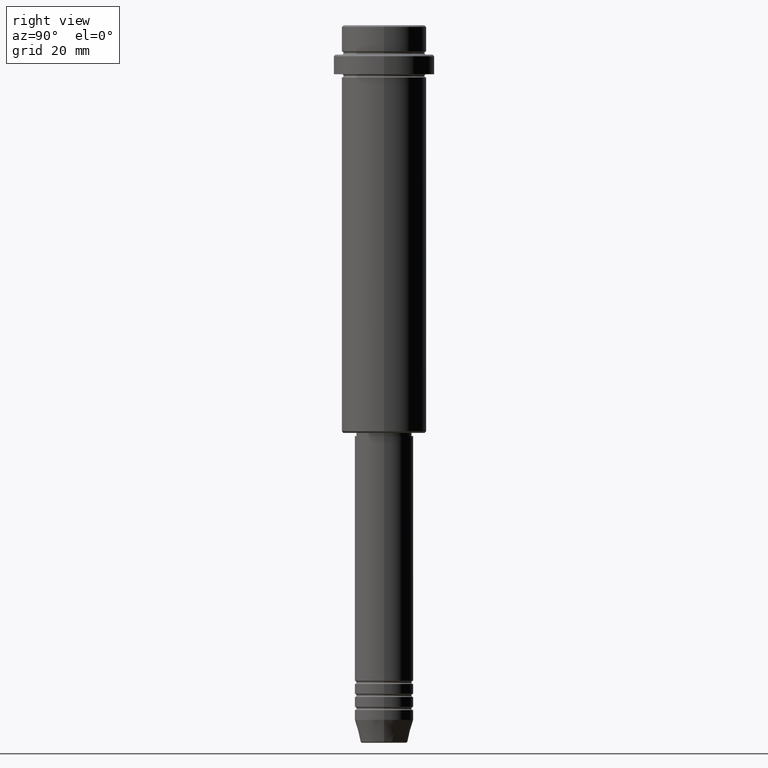
[diagram: clean part render]
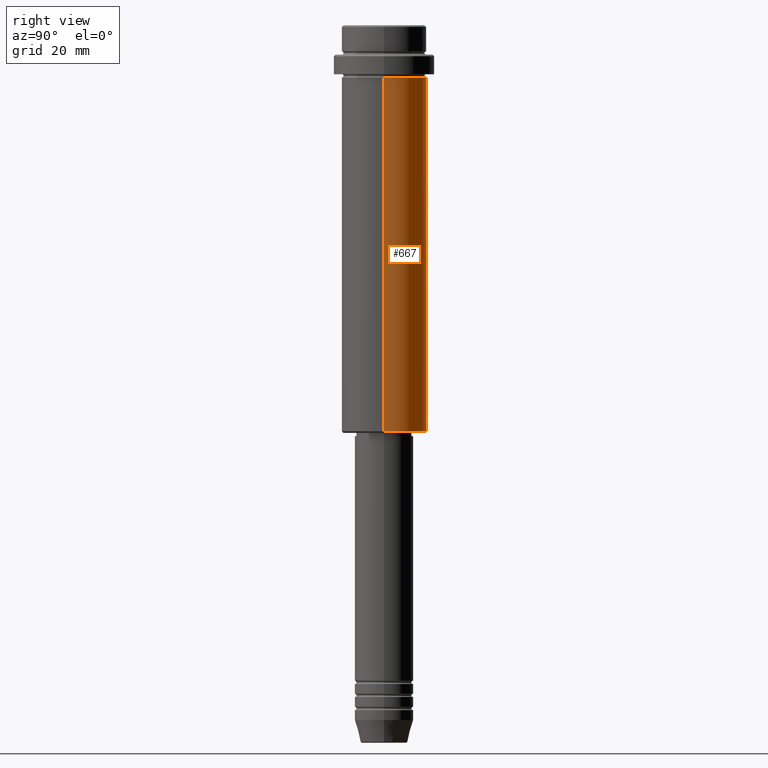
[diagram: same view with one face highlighted and labeled with its STEP entity id]
A machine part, right view. The second image highlights one B-rep face of the part: STEP entity #667.
In plain terms, the highlighted cylindrical surface (partial cylindrical patch) has radius 13 mm, axis along (-0, -0, 1).
Its self-contained STEP definition (entity closure, byte-faithful):
#2 = CIRCLE ( 'NONE', #267, 13.00000000000000000 ) ;
#36 = LINE ( 'NONE', #858, #983 ) ;
#101 = ORIENTED_EDGE ( 'NONE', *, *, #908, .F. ) ;
#132 = CARTESIAN_POINT ( 'NONE',  ( 13.00000000000000000, 0.000000000000000000, -16.00000000000000000 ) ) ;
#179 = EDGE_CURVE ( 'NONE', #880, #700, #597, .T. ) ;
#184 = VERTEX_POINT ( 'NONE', #768 ) ;
#196 = DIRECTION ( 'NONE',  ( -0.000000000000000000, -0.000000000000000000, 1.000000000000000000 ) ) ;
#215 = ORIENTED_EDGE ( 'NONE', *, *, #378, .T. ) ;
#267 = AXIS2_PLACEMENT_3D ( 'NONE', #637, #196, #1079 ) ;
#272 = VERTEX_POINT ( 'NONE', #788 ) ;
#309 = DIRECTION ( 'NONE',  ( 1.000000000000000000, 0.000000000000000000, 0.000000000000000000 ) ) ;
#378 = EDGE_CURVE ( 'NONE', #272, #184, #2, .T. ) ;
#418 = DIRECTION ( 'NONE',  ( -0.000000000000000000, -0.000000000000000000, 1.000000000000000000 ) ) ;
#470 = CYLINDRICAL_SURFACE ( 'NONE', #1121, 13.00000000000000000 ) ;
#491 = EDGE_LOOP ( 'NONE', ( #215, #523, #1012, #101 ) ) ;
#523 = ORIENTED_EDGE ( 'NONE', *, *, #1258, .T. ) ;
#533 = CARTESIAN_POINT ( 'NONE',  ( 0.000000000000000000, 0.000000000000000000, -16.00000000000000000 ) ) ;
#597 = CIRCLE ( 'NONE', #1394, 13.00000000000000000 ) ;
#637 = CARTESIAN_POINT ( 'NONE',  ( 0.000000000000000000, 0.000000000000000000, -124.4999999999999716 ) ) ;
#667 = ADVANCED_FACE ( 'NONE', ( #1113 ), #470, .T. ) ;
#688 = CARTESIAN_POINT ( 'NONE',  ( 0.000000000000000000, 0.000000000000000000, 0.000000000000000000 ) ) ;
#700 = VERTEX_POINT ( 'NONE', #838 ) ;
#768 = CARTESIAN_POINT ( 'NONE',  ( -13.00000000000000000, 1.592040838891559095E-15, -124.4999999999999716 ) ) ;
#788 = CARTESIAN_POINT ( 'NONE',  ( 13.00000000000000000, 0.000000000000000000, -124.4999999999999716 ) ) ;
#838 = CARTESIAN_POINT ( 'NONE',  ( -13.00000000000000000, 1.592040838891559095E-15, -16.00000000000000000 ) ) ;
#858 = CARTESIAN_POINT ( 'NONE',  ( 13.00000000000000000, 0.000000000000000000, 0.000000000000000000 ) ) ;
#880 = VERTEX_POINT ( 'NONE', #132 ) ;
#884 = DIRECTION ( 'NONE',  ( -0.000000000000000000, -0.000000000000000000, 1.000000000000000000 ) ) ;
#908 = EDGE_CURVE ( 'NONE', #272, #880, #36, .T. ) ;
#983 = VECTOR ( 'NONE', #1316, 1000.000000000000000 ) ;
#1012 = ORIENTED_EDGE ( 'NONE', *, *, #179, .F. ) ;
#1079 = DIRECTION ( 'NONE',  ( -1.000000000000000000, 0.000000000000000000, 0.000000000000000000 ) ) ;
#1086 = CARTESIAN_POINT ( 'NONE',  ( -13.00000000000000000, 1.592040838891559095E-15, 0.000000000000000000 ) ) ;
#1113 = FACE_OUTER_BOUND ( 'NONE', #491, .T. ) ;
#1121 = AXIS2_PLACEMENT_3D ( 'NONE', #688, #1128, #1342 ) ;
#1128 = DIRECTION ( 'NONE',  ( -0.000000000000000000, -0.000000000000000000, 1.000000000000000000 ) ) ;
#1219 = LINE ( 'NONE', #1086, #1366 ) ;
#1258 = EDGE_CURVE ( 'NONE', #184, #700, #1219, .T. ) ;
#1316 = DIRECTION ( 'NONE',  ( -0.000000000000000000, -0.000000000000000000, 1.000000000000000000 ) ) ;
#1342 = DIRECTION ( 'NONE',  ( 1.000000000000000000, 0.000000000000000000, 0.000000000000000000 ) ) ;
#1366 = VECTOR ( 'NONE', #884, 1000.000000000000000 ) ;
#1394 = AXIS2_PLACEMENT_3D ( 'NONE', #533, #418, #309 ) ;